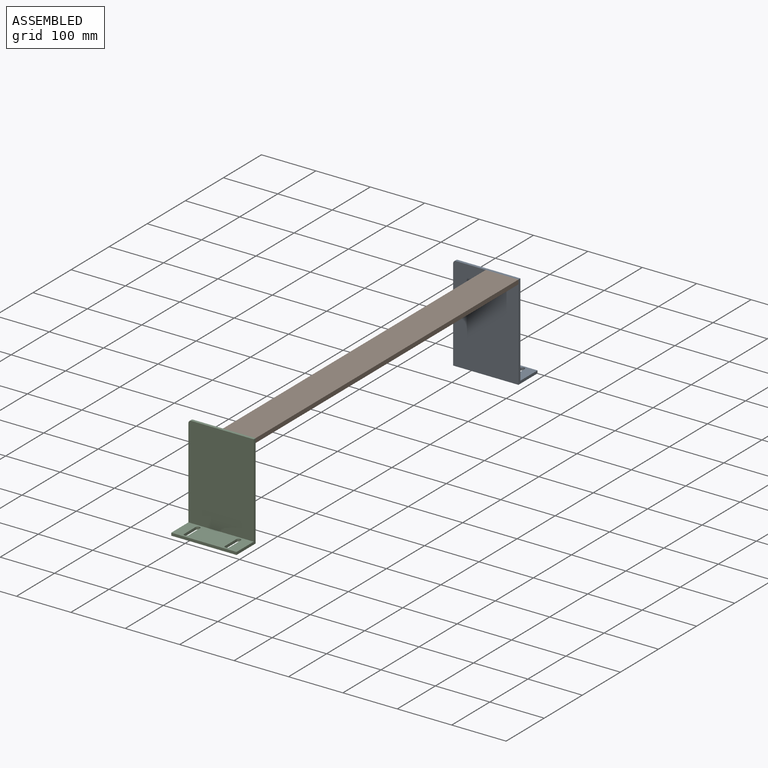
[diagram: assembled view]
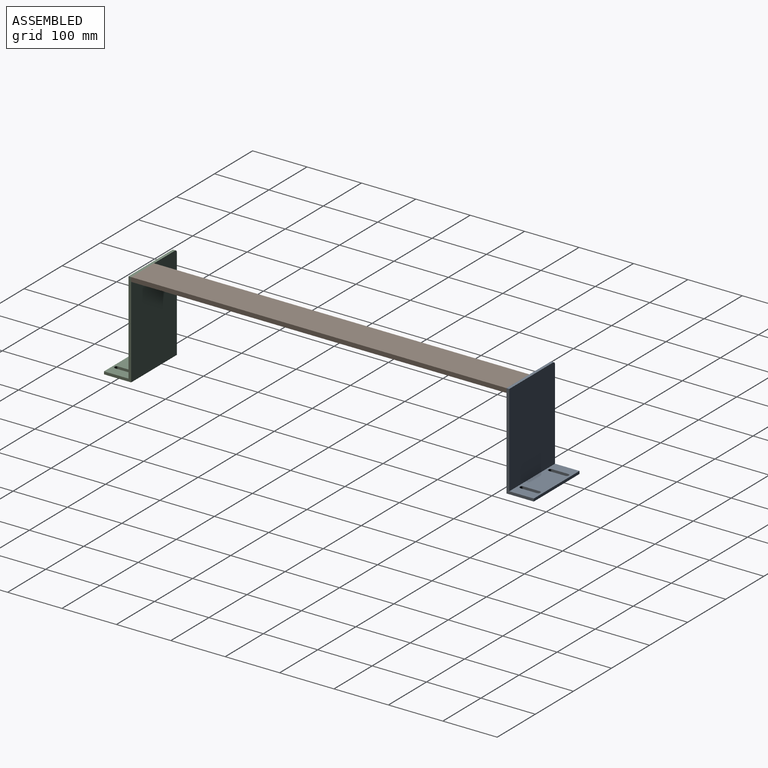
[diagram: assembled view, second angle]
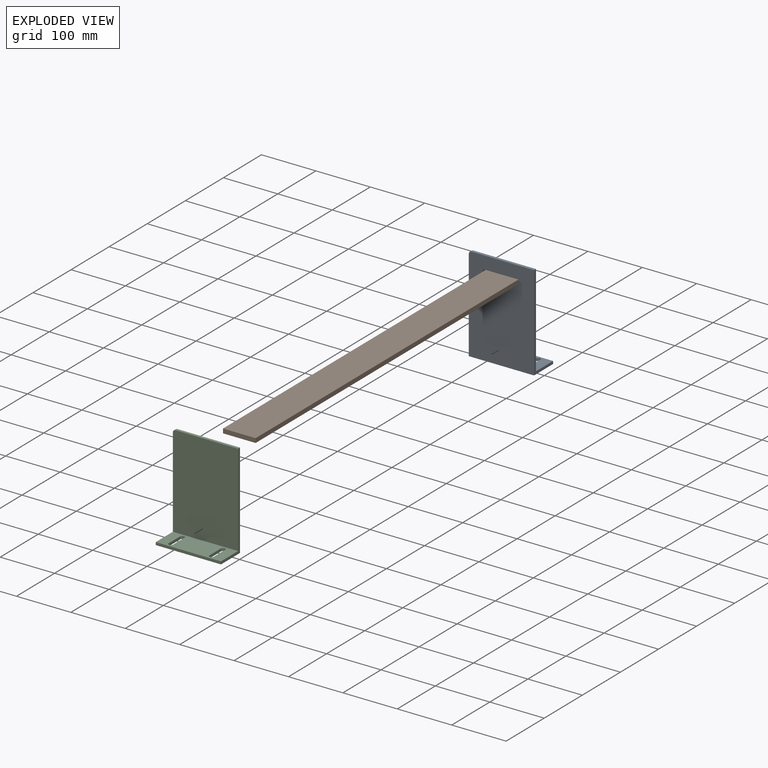
[diagram: exploded view]
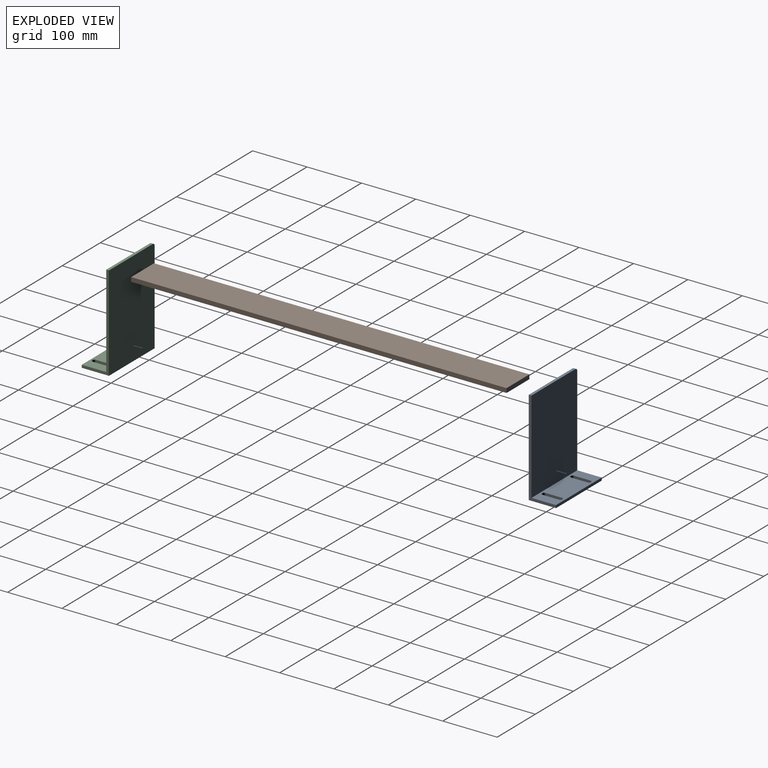
[diagram: exploded view, second angle]
ASSEMBLY  parts=3 mates=2
PART A: 17 faces, bbox 120x50x175 mm
  f0: plane 120x45mm, normal (0,0,1), area 4819.5mm2, adj f2,f5,f6,f7,f8,f9,f10,f11
  f1: plane 120x50mm, normal (0,0,-1), area 5419.5mm2, adj f2,f3,f6,f7,f8,f9,f10,f11
  f2: plane 120x5mm, normal (0,-1,0), area 600mm2, adj f0,f1,f6,f7
  f3: plane 175x120mm, normal (0,1,0), area 20994.6mm2, adj f1,f4,f6,f7,f16
  f4: plane 115x5mm, normal (0,0,1), area 575mm2, adj f3,f5,f7,f16
  f5: plane 170x120mm, normal (0,-1,0), area 20394.6mm2, adj f0,f4,f6,f7,f16
  f6: plane 170x50mm, normal (1,0,0), area 1075mm2, adj f0,f1,f2,f3,f5,f16
  f7: plane 175x50mm, normal (-1,0,0), area 1100mm2, adj f0,f1,f2,f3,f4,f5
  f8: cylinder r=4mm len=8mm, axis (0,0,1), area 62.8mm2, adj f0,f1,f9,f11
  f9: plane 30x5mm, normal (1,0,0), area 150mm2, adj f0,f1,f8,f10
  f10: cylinder r=4mm len=8mm, axis (0,0,1), area 62.8mm2, adj f0,f1,f9,f11
  f11: plane 30x5mm, normal (-1,0,0), area 150mm2, adj f0,f1,f8,f10
  f12: plane 30x5mm, normal (-1,0,0), area 150mm2, adj f0,f1,f13,f15
  f13: cylinder r=4mm len=8mm, axis (0,0,1), area 62.8mm2, adj f0,f1,f12,f14
  f14: plane 30x5mm, normal (1,0,0), area 150mm2, adj f0,f1,f13,f15
  f15: cylinder r=4mm len=8mm, axis (0,0,1), area 62.8mm2, adj f0,f1,f12,f14
  f16: cylinder r=5mm len=5mm, axis (0,1,0), area 39.3mm2, adj f3,f4,f5,f6
PART B: 6 faces, bbox 60x690x8 mm
  f0: plane 690x60mm, normal (0,0,1), area 41400mm2, adj f1,f3,f4,f5
  f1: plane 690x8mm, normal (-1,0,0), area 5520mm2, adj f0,f2,f4,f5
  f2: plane 690x60mm, normal (0,0,-1), area 41400mm2, adj f1,f3,f4,f5
  f3: plane 690x8mm, normal (1,0,0), area 5520mm2, adj f0,f2,f4,f5
  f4: plane 60x8mm, normal (0,-1,0), area 480mm2, adj f0,f1,f2,f3
  f5: plane 60x8mm, normal (0,1,0), area 480mm2, adj f0,f1,f2,f3
PART C: 17 faces, bbox 120x50x175 mm
  f0: plane 120x45mm, normal (0,0,1), area 4819.5mm2, adj f2,f5,f6,f7,f8,f9,f10,f11
  f1: plane 120x50mm, normal (0,0,-1), area 5419.5mm2, adj f2,f3,f6,f7,f8,f9,f10,f11
  f2: plane 120x5mm, normal (0,-1,0), area 600mm2, adj f0,f1,f6,f7
  f3: plane 175x120mm, normal (0,1,0), area 20994.6mm2, adj f1,f4,f6,f7,f16
  f4: plane 115x5mm, normal (0,0,1), area 575mm2, adj f3,f5,f6,f16
  f5: plane 170x120mm, normal (0,-1,0), area 20394.6mm2, adj f0,f4,f6,f7,f16
  f6: plane 175x50mm, normal (1,0,0), area 1100mm2, adj f0,f1,f2,f3,f4,f5
  f7: plane 170x50mm, normal (-1,0,0), area 1075mm2, adj f0,f1,f2,f3,f5,f16
  f8: cylinder r=4mm len=8mm, axis (0,0,1), area 62.8mm2, adj f0,f1,f9,f11
  f9: plane 30x5mm, normal (1,0,0), area 150mm2, adj f0,f1,f8,f10
  f10: cylinder r=4mm len=8mm, axis (0,0,1), area 62.8mm2, adj f0,f1,f9,f11
  f11: plane 30x5mm, normal (-1,0,0), area 150mm2, adj f0,f1,f8,f10
  f12: plane 30x5mm, normal (-1,0,0), area 150mm2, adj f0,f1,f13,f15
  f13: cylinder r=4mm len=8mm, axis (0,0,1), area 62.8mm2, adj f0,f1,f12,f14
  f14: plane 30x5mm, normal (1,0,0), area 150mm2, adj f0,f1,f13,f15
  f15: cylinder r=4mm len=8mm, axis (0,0,1), area 62.8mm2, adj f0,f1,f12,f14
  f16: cylinder r=5mm len=5mm, axis (0,-1,0), area 39.3mm2, adj f3,f4,f5,f7
PLACE A rot(axis=(0,0,1),180deg) t=(-97.59,421.89,-65.98)mm
PLACE B t=(-157.61,428.76,63.92)mm
PLACE C t=(-217.59,-254.37,-65.98)mm
MATE fastened C.f3 <-> B.f4  axis (0,1,0) through (-97.59,-261.24,118.64)mm
MATE fastened A.f3 <-> B.f5  axis (0,-1,0) through (-97.59,428.76,118.64)mm
